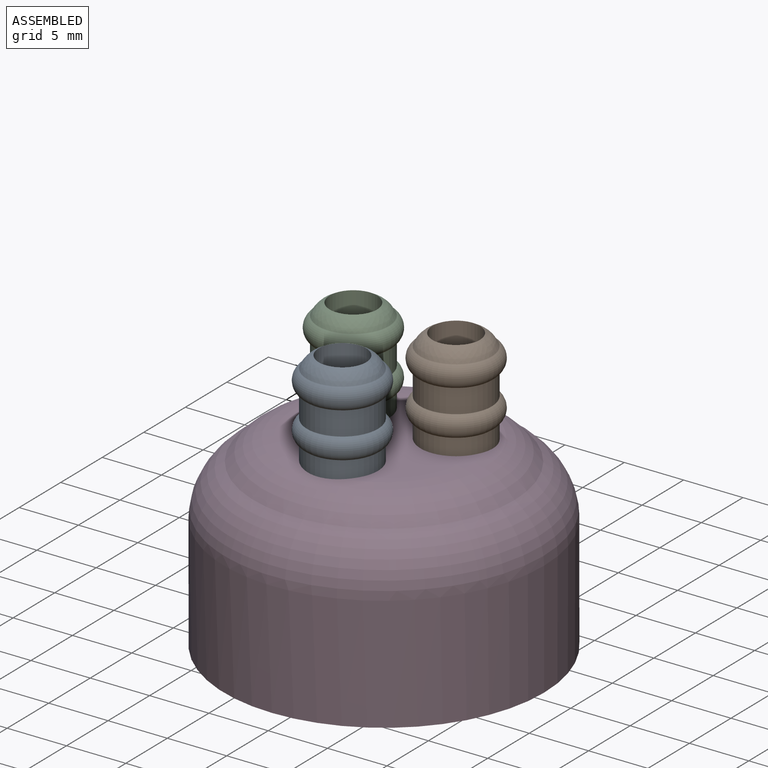
[diagram: assembled view]
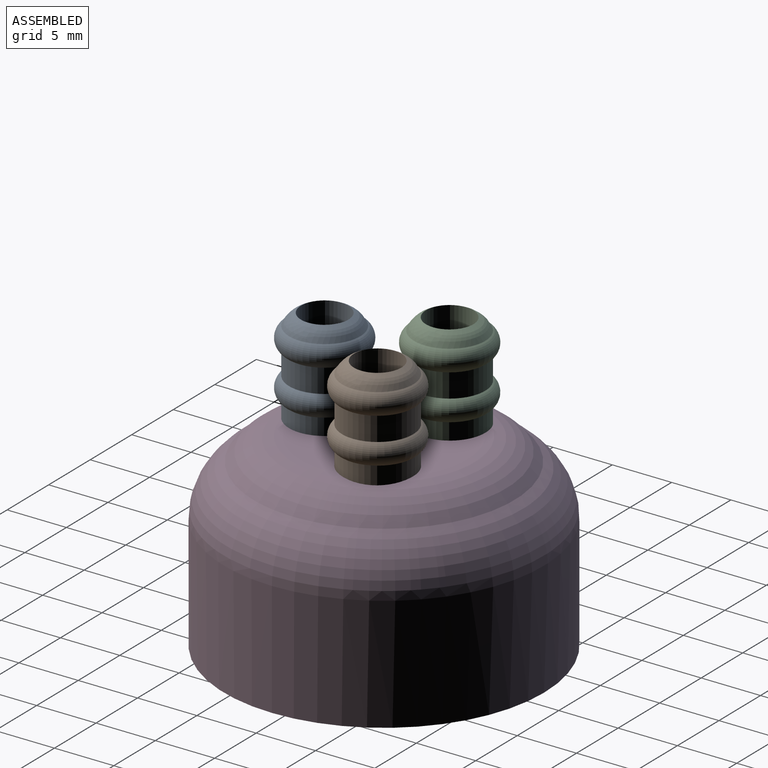
[diagram: assembled view, second angle]
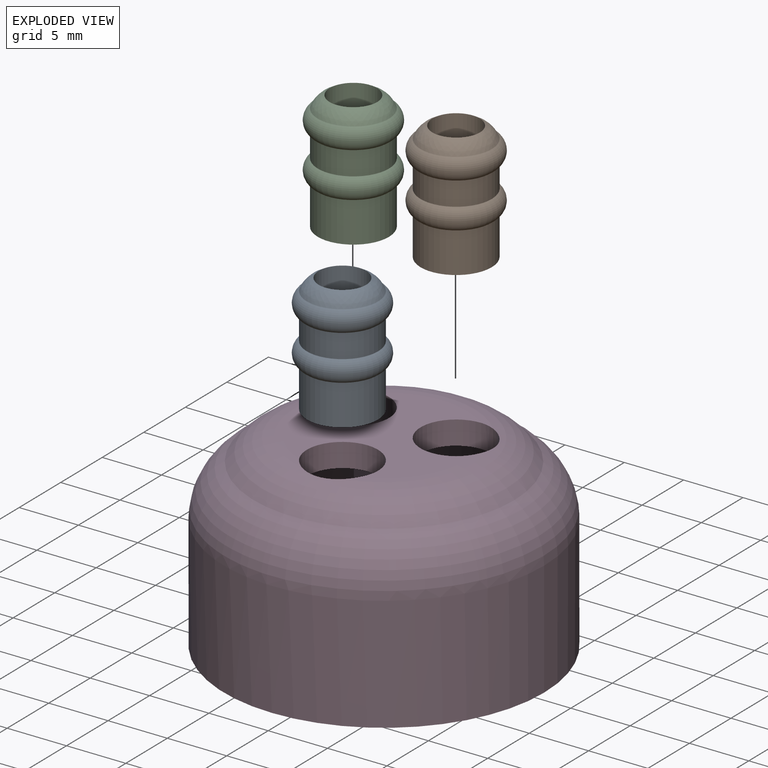
[diagram: exploded view]
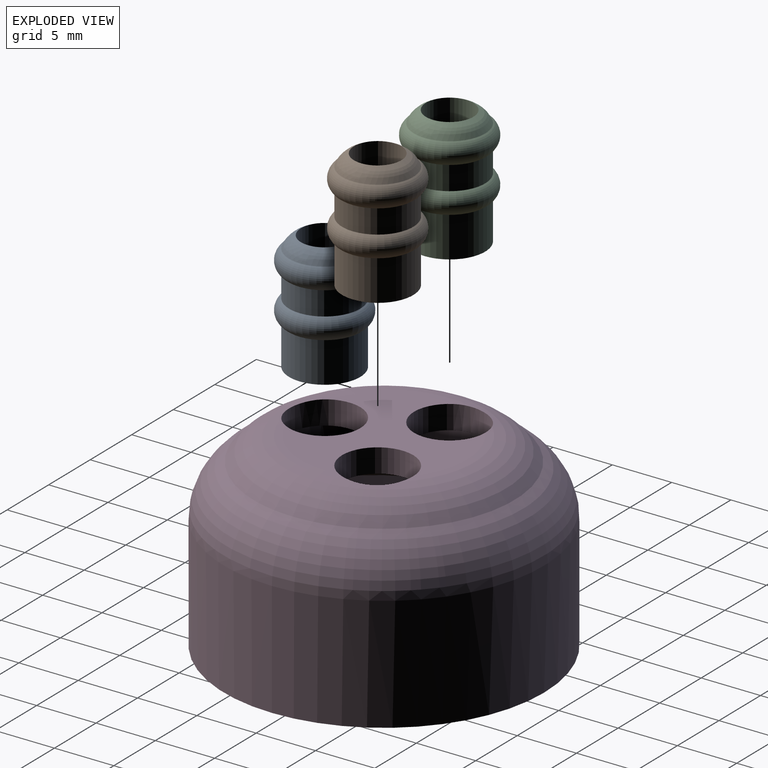
[diagram: exploded view, second angle]
ASSEMBLY  parts=4 mates=3
PART A: 7 faces, bbox 7.6x7.6x10 mm
  f0: cylinder r=3mm len=6mm, axis (0,0,-1), area 64.1mm2, adj f3,f5
  f1: cylinder r=3mm len=6mm, axis (0,0,-1), area 37.7mm2, adj f4,f5
  f2: cylinder r=2mm len=10mm, axis (0,0,-1), area 125.7mm2, adj f3,f6
  f3: plane 6x6mm, normal (0,0,-1), area 15.7mm2, adj f0,f2
  f4: torus R=2.44mm, axis (0,0,-1), area 45mm2, adj f1,f6
  f5: torus R=2.44mm, axis (0,0,-1), area 45mm2, adj f0,f1
  f6: bspline ~6x5.99mm, area 23.3mm2, adj f2,f4
PART B: same geometry as A
PART C: same geometry as A
PART D: 15 faces, bbox 30.3x30.3x18.1 mm
  f0: cylinder r=9.5mm len=19mm, axis (0,0,-1), area 82mm2, adj f2,f3,f4,f5,f6
  f1: cylinder r=13.5mm len=27mm, axis (0,0,-1), area 820.2mm2, adj f2,f13
  f2: plane 28.04x28.04mm, normal (0,0,1), area 253.9mm2, adj f0,f1,f4,f5
  f3: plane 1.6x0.89mm, normal (-0.67,0.74,0), area 1mm2, adj f0,f4,f5
  f4: bspline ~24.71x21.4mm, area 500.3mm2, adj f0,f2,f3,f5
  f5: bspline ~24.71x21.4mm, area 496.4mm2, adj f0,f2,f3,f4
  f6: plane 19x19mm, normal (0,0,1), area 82.5mm2, adj f0,f7
  f7: cylinder r=8mm len=16mm, axis (0,0,1), area 201.1mm2, adj f6,f12
  f8: cylinder r=3mm len=6mm, axis (0,0,1), area 37.7mm2, adj f11,f12,f14
  f9: cylinder r=3mm len=6mm, axis (0,0,1), area 37.7mm2, adj f11,f12,f14
  f10: cylinder r=3mm len=6mm, axis (0,0,1), area 37.7mm2, adj f11,f12,f14
  f11: plane 14x13.5mm, normal (0,0,-1), area 80.5mm2, adj f8,f9,f10,f14
  f12: plane 16x16mm, normal (0,0,1), area 116.2mm2, adj f7,f8,f9,f10
  f13: torus R=8.5mm, axis (0,0,-1), area 415.7mm2, adj f1,f14
  f14: torus R=7mm, axis (0,0,1), area 255.4mm2, adj f8,f9,f10,f11,f13
PLACE A t=(14.37,14.83,-0.44)mm
PLACE B t=(18.7,22.33,-0.44)mm
PLACE C t=(10.04,22.33,-0.44)mm
PLACE D rot(axis=(0,1,0),180deg) t=(14.37,19.83,-4.44)mm
MATE fastened A.f0 <-> D.f8  axis (0,0,-1) through (14.37,14.83,-0.44)mm
MATE fastened C.f0 <-> D.f10  axis (0,0,-1) through (10.04,22.33,-0.44)mm
MATE fastened D.f9 <-> B.f0  axis (0,0,-1) through (18.7,22.33,-0.44)mm
